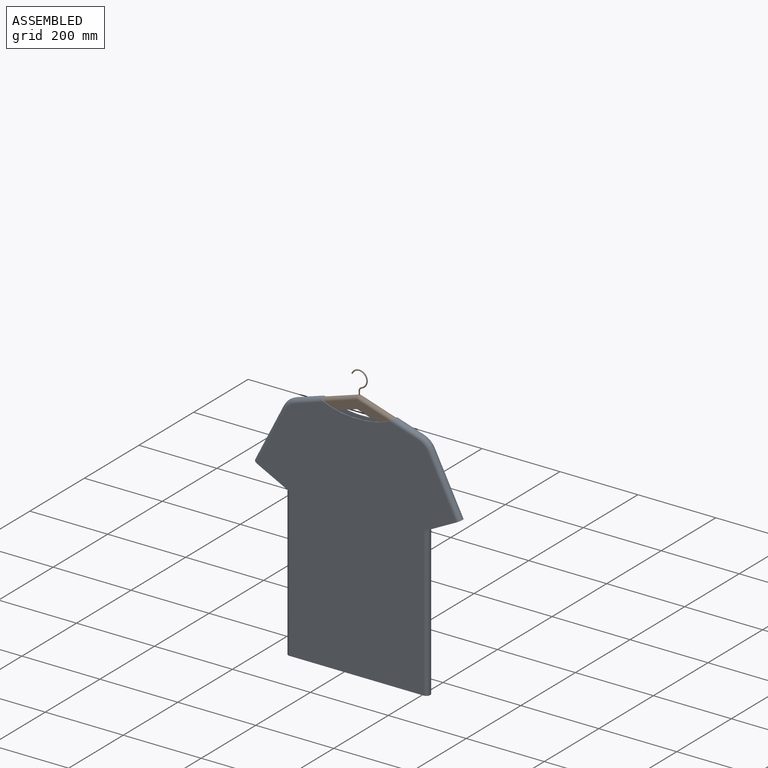
[diagram: assembled view]
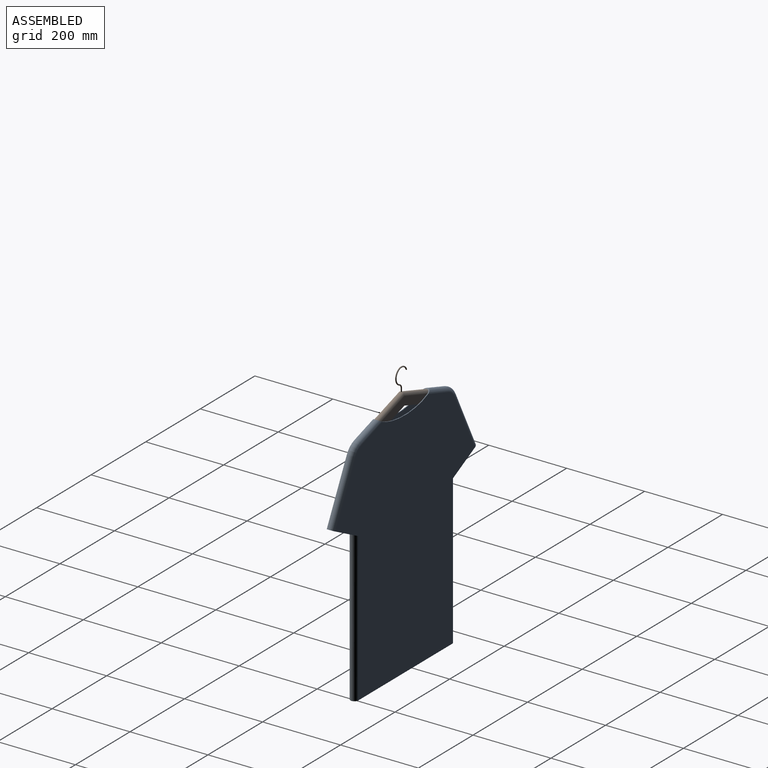
[diagram: assembled view, second angle]
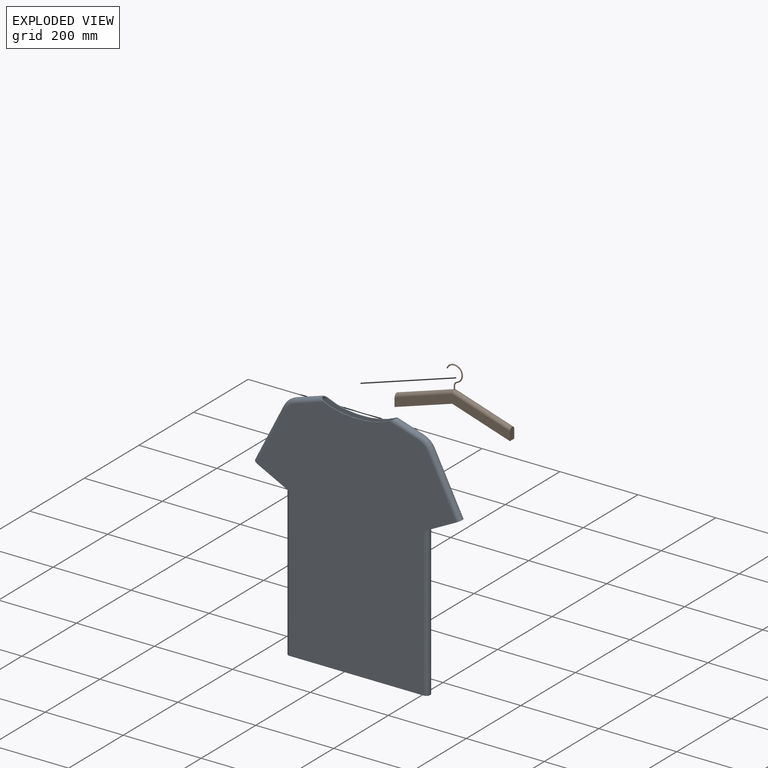
[diagram: exploded view]
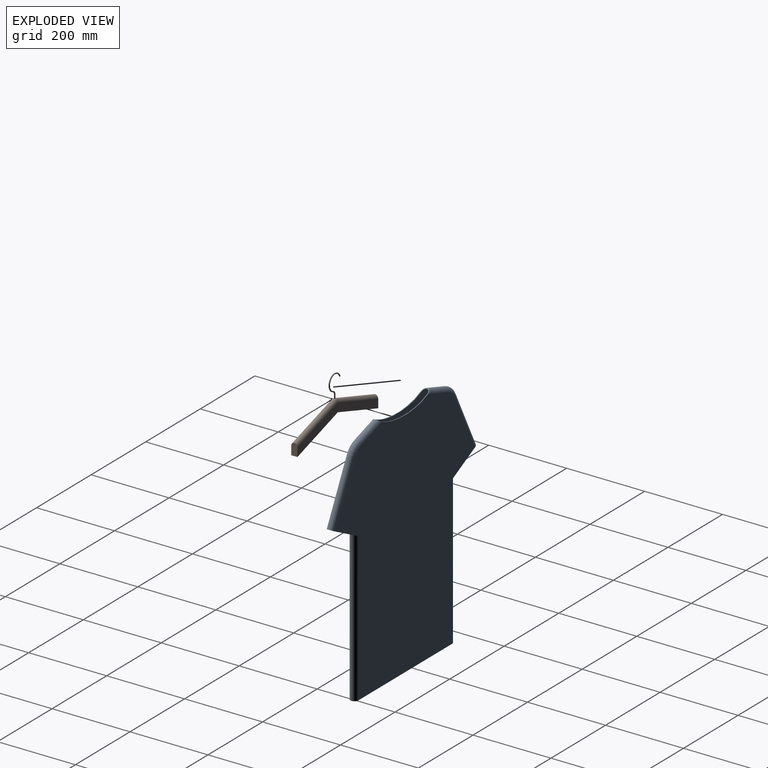
[diagram: exploded view, second angle]
ASSEMBLY  parts=2 mates=2
PART A: 26 faces, bbox 530.5x20x622.3 mm
  f0: plane 364.17x20mm, normal (0,0,-1), area 1489.8mm2, adj f4,f5,f9,f13,f15,f16,f20,f25
  f1: plane 93.19x47.43mm, normal (-0.45,0,-0.89), area 416.4mm2, adj f4,f5,f8,f9,f15,f16,f19
  f2: plane 93.19x47.43mm, normal (0.45,0,-0.89), area 416.4mm2, adj f4,f5,f12,f13,f15,f16,f24
  f3: extruded ~191.22x23.64mm, area 842.1mm2, adj f4,f5,f6,f10,f15,f16,f17,f22
  f4: plane 612.76x512.72mm, normal (0,-1,0), area 223942.7mm2, adj f0,f1,f2,f3,f6,f7,f8,f9
  f5: plane 612.76x512.72mm, normal (0,1,0), area 223942.7mm2, adj f0,f1,f2,f3,f6,f7,f8,f9
  f6: cylinder r=10mm len=78.32mm, axis (0.95,0,0.3), area 2294.3mm2, adj f3,f4,f5,f7
  f7: torus R=40mm, axis (0,-1,0), area 1152.7mm2, adj f4,f5,f6,f8
  f8: cylinder r=10mm len=149.38mm, axis (0.45,0,0.89), area 5105.8mm2, adj f1,f4,f5,f7
  f9: cylinder r=10mm len=386.15mm, axis (0,0,1), area 12072.9mm2, adj f0,f1,f4,f5,f14
  f10: cylinder r=10mm len=78.32mm, axis (-0.95,0,0.3), area 2294.3mm2, adj f3,f4,f5,f11
  f11: torus R=40mm, axis (0,-1,0), area 1152.7mm2, adj f4,f5,f10,f12
  f12: cylinder r=10mm len=149.38mm, axis (-0.45,0,0.89), area 5105.8mm2, adj f2,f4,f5,f11
  f13: cylinder r=10mm len=386.15mm, axis (0,0,1), area 12072.9mm2, adj f0,f2,f4,f5,f21
  f14: plane 16x10mm, normal (0.45,0,0.89), area 45.1mm2, adj f9,f15,f16,f20
  f15: plane 612.76x512.72mm, normal (0,1,0), area 223942.7mm2, adj f0,f1,f2,f3,f14,f17,f18,f19
  f16: plane 612.76x512.72mm, normal (0,-1,0), area 223942.7mm2, adj f0,f1,f2,f3,f14,f17,f18,f19
  f17: cylinder r=8mm len=77.71mm, axis (0.95,0,0.3), area 1863mm2, adj f3,f15,f16,f18
  f18: torus R=40mm, axis (0,-1,0), area 896.8mm2, adj f15,f16,f17,f19
  f19: cylinder r=8mm len=148.47mm, axis (0.45,0,0.89), area 4084.6mm2, adj f1,f15,f16,f18
  f20: cylinder r=8mm len=385.14mm, axis (0,0,1), area 9642mm2, adj f0,f14,f15,f16
  f21: plane 16x10mm, normal (-0.45,0,0.89), area 45.1mm2, adj f13,f15,f16,f25
  f22: cylinder r=8mm len=77.71mm, axis (-0.95,0,0.3), area 1863mm2, adj f3,f15,f16,f23
  f23: torus R=40mm, axis (0,-1,0), area 896.8mm2, adj f15,f16,f22,f24
  f24: cylinder r=8mm len=148.47mm, axis (-0.45,0,0.89), area 4084.6mm2, adj f2,f15,f16,f23
  f25: cylinder r=8mm len=385.14mm, axis (0,0,1), area 9642mm2, adj f0,f15,f16,f21
PART B: 12 faces, bbox 300.8x16x137.8 mm
  f0: plane 295.95x69.3mm, normal (0,-1,0), area 6542.4mm2, adj f1,f2,f4,f5,f6,f7
  f1: plane 30.5x16mm, normal (-1,0,0), area 459.2mm2, adj f0,f2,f3,f4
  f2: plane 147.98x47.19mm, normal (0.3,0,-0.95), area 2485.1mm2, adj f0,f1,f3,f6
  f3: plane 295.95x69.3mm, normal (0,1,0), area 6542.4mm2, adj f1,f2,f4,f5,f6,f7
  f4: cylinder r=8mm len=152.79mm, axis (-0.95,0,-0.3), area 3899.8mm2, adj f0,f1,f3,f7,f9
  f5: plane 30.5x16mm, normal (1,0,0), area 459.2mm2, adj f0,f3,f6,f7
  f6: plane 147.98x47.19mm, normal (-0.3,0,-0.95), area 2485.1mm2, adj f0,f2,f3,f5
  f7: cylinder r=8mm len=152.79mm, axis (0.95,0,-0.3), area 3899.8mm2, adj f0,f3,f4,f5,f9
  f8: plane 3x2.78mm, normal (-0.38,0,-0.93), area 7.1mm2, adj f11
  f9: cylinder r=1.5mm len=9.04mm, axis (0,0,1), area 84.3mm2, adj f4,f7,f10
  f10: torus R=10mm, axis (0,1,0), area 116mm2, adj f9,f11
  f11: torus R=20mm, axis (0,-1,0), area 751mm2, adj f8,f10
PLACE A t=(-351.5,-289.96,-101.19)mm
PLACE B t=(-351.5,-289.96,-101.19)mm
MATE slider A.f6 <-> B.f4  axis (0.95,0,0.3) through (-472.79,-289.96,174.64)mm
MATE slider B.f7 <-> A.f10  axis (0.95,0,-0.3) through (-278.71,-289.96,190.1)mm
